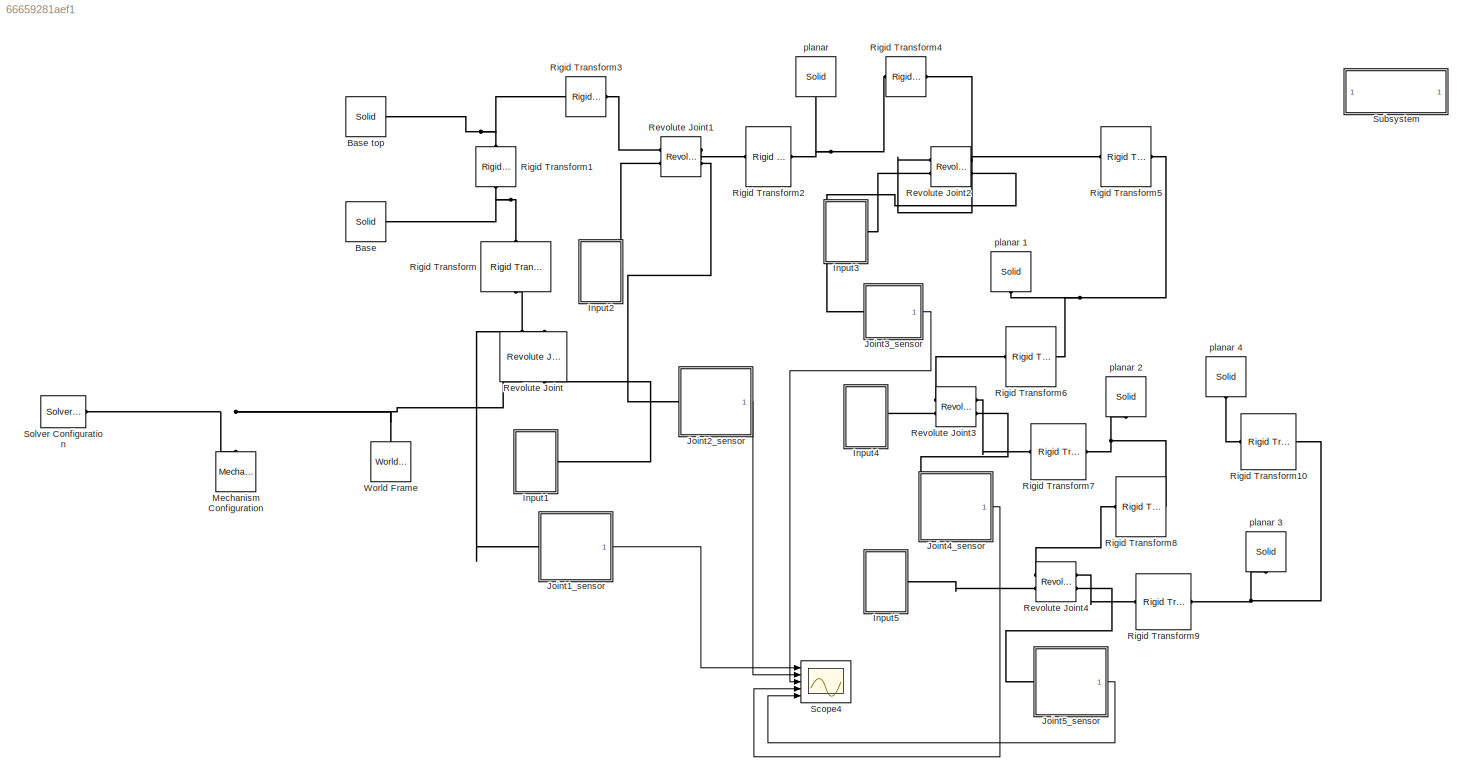
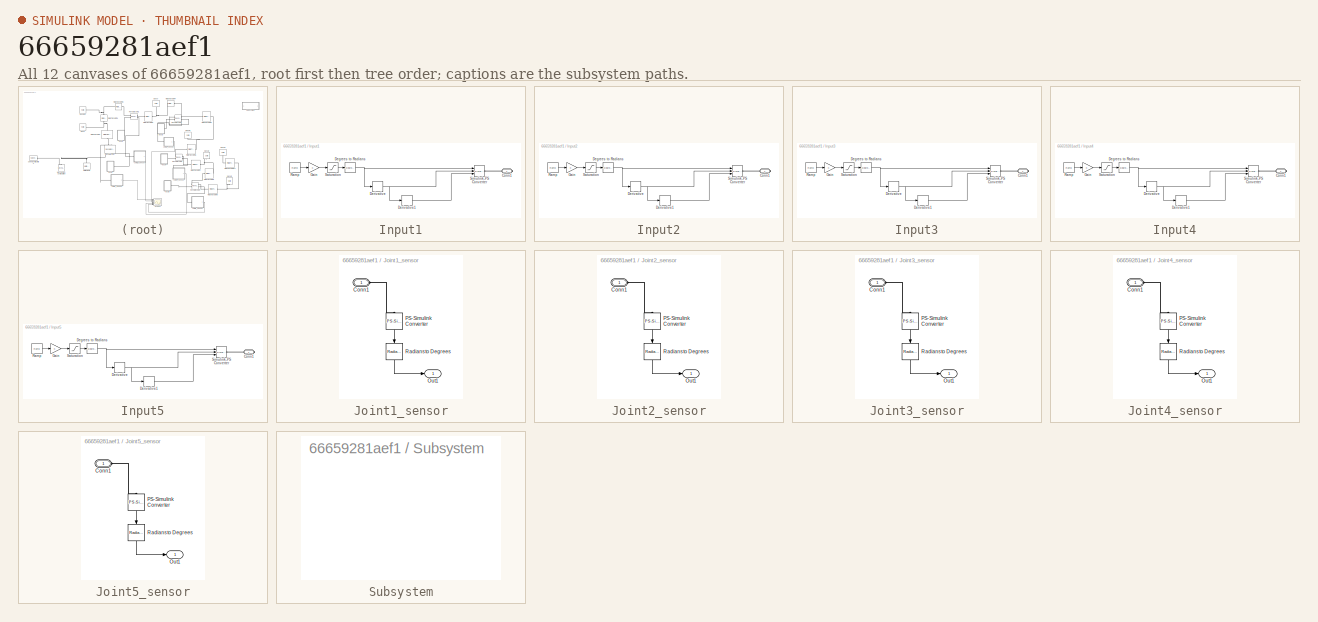
[diagram: thumbnail index - all 12 canvases of the model, root first then tree order]
MODEL slx_66659281aef1
KIND model
CONFIG AbsTol = 1e-3
CONFIG EnableMultiTasking = on
CONFIG FixedStep = auto
CONFIG MaxStep = auto
CONFIG MinStep = auto
CONFIG RelTol = 1e-3
CONFIG SampleTimeConstraint = Unconstrained
CONFIG Solver = VariableStepAuto
CONFIG SolverName = VariableStepAuto
CONFIG StartTime = 0.0
CONFIG StopTime = 50
BLOCK [Reference] Base  REF=sm_lib/Body Elements/Solid
  Ports = [0, 0, 0, 0, 0, 0, 1]
  SourceBlock = sm_lib/Body Elements/Solid
  SourceProductBaseCode = MS
  SourceProductName = Simscape Multibody
  SourceType = Solid
BLOCK [Reference] Base top  REF=sm_lib/Body Elements/Solid
  Ports = [0, 0, 0, 0, 0, 0, 1]
  SourceBlock = sm_lib/Body Elements/Solid
  SourceProductBaseCode = MS
  SourceProductName = Simscape Multibody
  SourceType = Solid
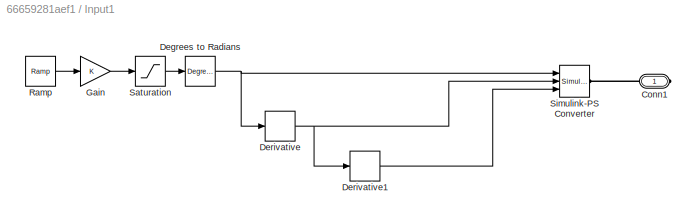
BLOCK [SubSystem] Input1
  Ports = [0, 0, 0, 0, 0, 0, 1]
  RequestExecContextInheritance = off
  Variant = off
BLOCK [PMIOPort] Input1/Conn1
  Port = 1
  Side = Right
BLOCK [Reference] Input1/Degrees to Radians  REF=simulink_extras/Transformations/Degrees to
Radians
  Ports = [1, 1]
  SourceBlock = simulink_extras/Transformations/Degrees to\nRadians
  SourceProductBaseCode = SL
  SourceProductName = Simulink
  SourceType = DegreesToRadians
BLOCK [Derivative] Input1/Derivative
  CoefficientInTFapproximation = 0
BLOCK [Derivative] Input1/Derivative1
  CoefficientInTFapproximation = 0
BLOCK [Gain] Input1/Gain
  OutDataTypeStr = Inherit: Inherit via internal rule
  ParamDataTypeStr = Inherit: Inherit via internal rule
  SaturateOnIntegerOverflow = off
BLOCK [Reference] Input1/Ramp  REF=simulink/Sources/Ramp
  Ports = [0, 1]
  SourceBlock = simulink/Sources/Ramp
  SourceProductBaseCode = SL
  SourceProductName = Simulink
  SourceType = Ramp
BLOCK [Saturate] Input1/Saturation
  InputPortMap = u0
  LowerLimit = -180
  Ports = [1, 1]
  UpperLimit = 0
BLOCK [Reference] Input1/Simulink-PS Converter  REF=nesl_utility/Simulink-PS
Converter
  Ports = [3, 0, 0, 0, 0, 0, 1]
  SourceBlock = nesl_utility/Simulink-PS\nConverter
  SourceProductBaseCode = SS
  SourceProductName = Simscape
  SourceType = Simulink-PS\nConverter
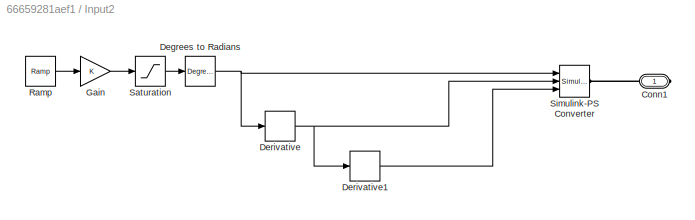
BLOCK [SubSystem] Input2
  Ports = [0, 0, 0, 0, 0, 0, 1]
  RequestExecContextInheritance = off
  Variant = off
BLOCK [PMIOPort] Input2/Conn1
  Port = 1
  Side = Right
BLOCK [Reference] Input2/Degrees to Radians  REF=simulink_extras/Transformations/Degrees to
Radians
  Ports = [1, 1]
  SourceBlock = simulink_extras/Transformations/Degrees to\nRadians
  SourceProductBaseCode = SL
  SourceProductName = Simulink
  SourceType = DegreesToRadians
BLOCK [Derivative] Input2/Derivative
  CoefficientInTFapproximation = 0
BLOCK [Derivative] Input2/Derivative1
  CoefficientInTFapproximation = 0
BLOCK [Gain] Input2/Gain
  OutDataTypeStr = Inherit: Inherit via internal rule
  ParamDataTypeStr = Inherit: Inherit via internal rule
  SaturateOnIntegerOverflow = off
BLOCK [Reference] Input2/Ramp  REF=simulink/Sources/Ramp
  Ports = [0, 1]
  SourceBlock = simulink/Sources/Ramp
  SourceProductBaseCode = SL
  SourceProductName = Simulink
  SourceType = Ramp
BLOCK [Saturate] Input2/Saturation
  InputPortMap = u0
  LowerLimit = -180
  Ports = [1, 1]
  UpperLimit = 90
BLOCK [Reference] Input2/Simulink-PS Converter  REF=nesl_utility/Simulink-PS
Converter
  Ports = [3, 0, 0, 0, 0, 0, 1]
  SourceBlock = nesl_utility/Simulink-PS\nConverter
  SourceProductBaseCode = SS
  SourceProductName = Simscape
  SourceType = Simulink-PS\nConverter
BLOCK [SubSystem] Input3
  Ports = [0, 0, 0, 0, 0, 0, 1]
  RequestExecContextInheritance = off
  Variant = off
BLOCK [PMIOPort] Input3/Conn1
  Port = 1
  Side = Right
BLOCK [Reference] Input3/Degrees to Radians  REF=simulink_extras/Transformations/Degrees to
Radians
  Ports = [1, 1]
  SourceBlock = simulink_extras/Transformations/Degrees to\nRadians
  SourceProductBaseCode = SL
  SourceProductName = Simulink
  SourceType = DegreesToRadians
BLOCK [Derivative] Input3/Derivative
  CoefficientInTFapproximation = 0
BLOCK [Derivative] Input3/Derivative1
  CoefficientInTFapproximation = 0
BLOCK [Gain] Input3/Gain
  OutDataTypeStr = Inherit: Inherit via internal rule
  ParamDataTypeStr = Inherit: Inherit via internal rule
  SaturateOnIntegerOverflow = off
BLOCK [Reference] Input3/Ramp  REF=simulink/Sources/Ramp
  Ports = [0, 1]
  SourceBlock = simulink/Sources/Ramp
  SourceProductBaseCode = SL
  SourceProductName = Simulink
  SourceType = Ramp
BLOCK [Saturate] Input3/Saturation
  InputPortMap = u0
  LowerLimit = -180
  Ports = [1, 1]
  UpperLimit = 0
BLOCK [Reference] Input3/Simulink-PS Converter  REF=nesl_utility/Simulink-PS
Converter
  Ports = [3, 0, 0, 0, 0, 0, 1]
  SourceBlock = nesl_utility/Simulink-PS\nConverter
  SourceProductBaseCode = SS
  SourceProductName = Simscape
  SourceType = Simulink-PS\nConverter
BLOCK [SubSystem] Input4
  Ports = [0, 0, 0, 0, 0, 0, 1]
  RequestExecContextInheritance = off
  Variant = off
BLOCK [PMIOPort] Input4/Conn1
  Port = 1
  Side = Right
BLOCK [Reference] Input4/Degrees to Radians  REF=simulink_extras/Transformations/Degrees to
Radians
  Ports = [1, 1]
  SourceBlock = simulink_extras/Transformations/Degrees to\nRadians
  SourceProductBaseCode = SL
  SourceProductName = Simulink
  SourceType = DegreesToRadians
BLOCK [Derivative] Input4/Derivative
  CoefficientInTFapproximation = 0
BLOCK [Derivative] Input4/Derivative1
  CoefficientInTFapproximation = 0
BLOCK [Gain] Input4/Gain
  OutDataTypeStr = Inherit: Inherit via internal rule
  ParamDataTypeStr = Inherit: Inherit via internal rule
  SaturateOnIntegerOverflow = off
BLOCK [Reference] Input4/Ramp  REF=simulink/Sources/Ramp
  Ports = [0, 1]
  SourceBlock = simulink/Sources/Ramp
  SourceProductBaseCode = SL
  SourceProductName = Simulink
  SourceType = Ramp
BLOCK [Saturate] Input4/Saturation
  InputPortMap = u0
  LowerLimit = -180
  Ports = [1, 1]
  UpperLimit = 0
BLOCK [Reference] Input4/Simulink-PS Converter  REF=nesl_utility/Simulink-PS
Converter
  Ports = [3, 0, 0, 0, 0, 0, 1]
  SourceBlock = nesl_utility/Simulink-PS\nConverter
  SourceProductBaseCode = SS
  SourceProductName = Simscape
  SourceType = Simulink-PS\nConverter
BLOCK [SubSystem] Input5
  Ports = [0, 0, 0, 0, 0, 0, 1]
  RequestExecContextInheritance = off
  Variant = off
BLOCK [PMIOPort] Input5/Conn1
  Port = 1
  Side = Right
BLOCK [Reference] Input5/Degrees to Radians  REF=simulink_extras/Transformations/Degrees to
Radians
  Ports = [1, 1]
  SourceBlock = simulink_extras/Transformations/Degrees to\nRadians
  SourceProductBaseCode = SL
  SourceProductName = Simulink
  SourceType = DegreesToRadians
BLOCK [Derivative] Input5/Derivative
  CoefficientInTFapproximation = 0
BLOCK [Derivative] Input5/Derivative1
  CoefficientInTFapproximation = 0
BLOCK [Gain] Input5/Gain
  OutDataTypeStr = Inherit: Inherit via internal rule
  ParamDataTypeStr = Inherit: Inherit via internal rule
  SaturateOnIntegerOverflow = off
BLOCK [Reference] Input5/Ramp  REF=simulink/Sources/Ramp
  Ports = [0, 1]
  SourceBlock = simulink/Sources/Ramp
  SourceProductBaseCode = SL
  SourceProductName = Simulink
  SourceType = Ramp
BLOCK [Saturate] Input5/Saturation
  InputPortMap = u0
  LowerLimit = -180
  Ports = [1, 1]
  UpperLimit = 0
BLOCK [Reference] Input5/Simulink-PS Converter  REF=nesl_utility/Simulink-PS
Converter
  Ports = [3, 0, 0, 0, 0, 0, 1]
  SourceBlock = nesl_utility/Simulink-PS\nConverter
  SourceProductBaseCode = SS
  SourceProductName = Simscape
  SourceType = Simulink-PS\nConverter
BLOCK [SubSystem] Joint1_sensor
  Ports = [0, 1, 0, 0, 0, 1]
  RequestExecContextInheritance = off
  Variant = off
BLOCK [PMIOPort] Joint1_sensor/Conn1
  Port = 1
  Side = Left
BLOCK [Outport] Joint1_sensor/Out1
  IconDisplay = Port number
BLOCK [Reference] Joint1_sensor/PS-Simulink Converter  REF=nesl_utility/PS-Simulink
Converter
  Ports = [0, 1, 0, 0, 0, 1]
  SourceBlock = nesl_utility/PS-Simulink\nConverter
  SourceProductBaseCode = SS
  SourceProductName = Simscape
  SourceType = PS-Simulink\nConverter
BLOCK [Reference] Joint1_sensor/Radians to Degrees  REF=simulink_extras/Transformations/Radians
to Degrees
  Ports = [1, 1]
  SourceBlock = simulink_extras/Transformations/Radians\nto Degrees
  SourceProductBaseCode = SL
  SourceProductName = Simulink
  SourceType = RadiansToDegrees
BLOCK [SubSystem] Joint2_sensor
  Ports = [0, 1, 0, 0, 0, 1]
  RequestExecContextInheritance = off
  Variant = off
BLOCK [PMIOPort] Joint2_sensor/Conn1
  Port = 1
  Side = Left
BLOCK [Outport] Joint2_sensor/Out1
  IconDisplay = Port number
BLOCK [Reference] Joint2_sensor/PS-Simulink Converter  REF=nesl_utility/PS-Simulink
Converter
  Ports = [0, 1, 0, 0, 0, 1]
  SourceBlock = nesl_utility/PS-Simulink\nConverter
  SourceProductBaseCode = SS
  SourceProductName = Simscape
  SourceType = PS-Simulink\nConverter
BLOCK [Reference] Joint2_sensor/Radians to Degrees  REF=simulink_extras/Transformations/Radians
to Degrees
  Ports = [1, 1]
  SourceBlock = simulink_extras/Transformations/Radians\nto Degrees
  SourceProductBaseCode = SL
  SourceProductName = Simulink
  SourceType = RadiansToDegrees
BLOCK [SubSystem] Joint3_sensor
  Ports = [0, 1, 0, 0, 0, 1]
  RequestExecContextInheritance = off
  Variant = off
BLOCK [PMIOPort] Joint3_sensor/Conn1
  Port = 1
  Side = Left
BLOCK [Outport] Joint3_sensor/Out1
  IconDisplay = Port number
BLOCK [Reference] Joint3_sensor/PS-Simulink Converter  REF=nesl_utility/PS-Simulink
Converter
  Ports = [0, 1, 0, 0, 0, 1]
  SourceBlock = nesl_utility/PS-Simulink\nConverter
  SourceProductBaseCode = SS
  SourceProductName = Simscape
  SourceType = PS-Simulink\nConverter
BLOCK [Reference] Joint3_sensor/Radians to Degrees  REF=simulink_extras/Transformations/Radians
to Degrees
  Ports = [1, 1]
  SourceBlock = simulink_extras/Transformations/Radians\nto Degrees
  SourceProductBaseCode = SL
  SourceProductName = Simulink
  SourceType = RadiansToDegrees
BLOCK [SubSystem] Joint4_sensor
  Ports = [0, 1, 0, 0, 0, 1]
  RequestExecContextInheritance = off
  Variant = off
BLOCK [PMIOPort] Joint4_sensor/Conn1
  Port = 1
  Side = Left
BLOCK [Outport] Joint4_sensor/Out1
  IconDisplay = Port number
BLOCK [Reference] Joint4_sensor/PS-Simulink Converter  REF=nesl_utility/PS-Simulink
Converter
  Ports = [0, 1, 0, 0, 0, 1]
  SourceBlock = nesl_utility/PS-Simulink\nConverter
  SourceProductBaseCode = SS
  SourceProductName = Simscape
  SourceType = PS-Simulink\nConverter
BLOCK [Reference] Joint4_sensor/Radians to Degrees  REF=simulink_extras/Transformations/Radians
to Degrees
  Ports = [1, 1]
  SourceBlock = simulink_extras/Transformations/Radians\nto Degrees
  SourceProductBaseCode = SL
  SourceProductName = Simulink
  SourceType = RadiansToDegrees
BLOCK [SubSystem] Joint5_sensor
  Ports = [0, 1, 0, 0, 0, 1]
  RequestExecContextInheritance = off
  Variant = off
BLOCK [PMIOPort] Joint5_sensor/Conn1
  Port = 1
  Side = Left
BLOCK [Outport] Joint5_sensor/Out1
  IconDisplay = Port number
BLOCK [Reference] Joint5_sensor/PS-Simulink Converter  REF=nesl_utility/PS-Simulink
Converter
  Ports = [0, 1, 0, 0, 0, 1]
  SourceBlock = nesl_utility/PS-Simulink\nConverter
  SourceProductBaseCode = SS
  SourceProductName = Simscape
  SourceType = PS-Simulink\nConverter
BLOCK [Reference] Joint5_sensor/Radians to Degrees  REF=simulink_extras/Transformations/Radians
to Degrees
  Ports = [1, 1]
  SourceBlock = simulink_extras/Transformations/Radians\nto Degrees
  SourceProductBaseCode = SL
  SourceProductName = Simulink
  SourceType = RadiansToDegrees
BLOCK [Reference] Mechanism Configuration  REF=sm_lib/Utilities/Mechanism
Configuration
  Ports = [0, 0, 0, 0, 0, 0, 1]
  SourceBlock = sm_lib/Utilities/Mechanism\nConfiguration
  SourceProductBaseCode = MS
  SourceProductName = Simscape Multibody
  SourceType = Mechanism\nConfiguration
BLOCK [Reference] Revolute Joint  REF=sm_lib/Joints/Revolute Joint
  Ports = [0, 0, 0, 0, 0, 2, 2]
  SourceBlock = sm_lib/Joints/Revolute Joint
  SourceProductBaseCode = MS
  SourceProductName = Simscape Multibody
  SourceType = Revolute Joint
BLOCK [Reference] Revolute Joint1  REF=sm_lib/Joints/Revolute Joint
  Ports = [0, 0, 0, 0, 0, 2, 2]
  SourceBlock = sm_lib/Joints/Revolute Joint
  SourceProductBaseCode = MS
  SourceProductName = Simscape Multibody
  SourceType = Revolute Joint
BLOCK [Reference] Revolute Joint2  REF=sm_lib/Joints/Revolute Joint
  Ports = [0, 0, 0, 0, 0, 2, 2]
  SourceBlock = sm_lib/Joints/Revolute Joint
  SourceProductBaseCode = MS
  SourceProductName = Simscape Multibody
  SourceType = Revolute Joint
BLOCK [Reference] Revolute Joint3  REF=sm_lib/Joints/Revolute Joint
  Ports = [0, 0, 0, 0, 0, 2, 2]
  SourceBlock = sm_lib/Joints/Revolute Joint
  SourceProductBaseCode = MS
  SourceProductName = Simscape Multibody
  SourceType = Revolute Joint
BLOCK [Reference] Revolute Joint4  REF=sm_lib/Joints/Revolute Joint
  Ports = [0, 0, 0, 0, 0, 2, 2]
  SourceBlock = sm_lib/Joints/Revolute Joint
  SourceProductBaseCode = MS
  SourceProductName = Simscape Multibody
  SourceType = Revolute Joint
BLOCK [Reference] Rigid Transform  REF=sm_lib/Frames and
Transforms/Rigid
Transform
  Ports = [0, 0, 0, 0, 0, 1, 1]
  SourceBlock = sm_lib/Frames and\nTransforms/Rigid\nTransform
  SourceProductBaseCode = MS
  SourceProductName = Simscape Multibody
  SourceType = Rigid\nTransform
BLOCK [Reference] Rigid Transform1  REF=sm_lib/Frames and
Transforms/Rigid
Transform
  Ports = [0, 0, 0, 0, 0, 1, 1]
  SourceBlock = sm_lib/Frames and\nTransforms/Rigid\nTransform
  SourceProductBaseCode = MS
  SourceProductName = Simscape Multibody
  SourceType = Rigid\nTransform
BLOCK [Reference] Rigid Transform10  REF=sm_lib/Frames and
Transforms/Rigid
Transform
  Ports = [0, 0, 0, 0, 0, 1, 1]
  SourceBlock = sm_lib/Frames and\nTransforms/Rigid\nTransform
  SourceProductBaseCode = MS
  SourceProductName = Simscape Multibody
  SourceType = Rigid\nTransform
BLOCK [Reference] Rigid Transform2  REF=sm_lib/Frames and
Transforms/Rigid
Transform
  Ports = [0, 0, 0, 0, 0, 1, 1]
  SourceBlock = sm_lib/Frames and\nTransforms/Rigid\nTransform
  SourceProductBaseCode = MS
  SourceProductName = Simscape Multibody
  SourceType = Rigid\nTransform
BLOCK [Reference] Rigid Transform3  REF=sm_lib/Frames and
Transforms/Rigid
Transform
  Ports = [0, 0, 0, 0, 0, 1, 1]
  SourceBlock = sm_lib/Frames and\nTransforms/Rigid\nTransform
  SourceProductBaseCode = MS
  SourceProductName = Simscape Multibody
  SourceType = Rigid\nTransform
BLOCK [Reference] Rigid Transform4  REF=sm_lib/Frames and
Transforms/Rigid
Transform
  Ports = [0, 0, 0, 0, 0, 1, 1]
  SourceBlock = sm_lib/Frames and\nTransforms/Rigid\nTransform
  SourceProductBaseCode = MS
  SourceProductName = Simscape Multibody
  SourceType = Rigid\nTransform
BLOCK [Reference] Rigid Transform5  REF=sm_lib/Frames and
Transforms/Rigid
Transform
  Ports = [0, 0, 0, 0, 0, 1, 1]
  SourceBlock = sm_lib/Frames and\nTransforms/Rigid\nTransform
  SourceProductBaseCode = MS
  SourceProductName = Simscape Multibody
  SourceType = Rigid\nTransform
BLOCK [Reference] Rigid Transform6  REF=sm_lib/Frames and
Transforms/Rigid
Transform
  Ports = [0, 0, 0, 0, 0, 1, 1]
  SourceBlock = sm_lib/Frames and\nTransforms/Rigid\nTransform
  SourceProductBaseCode = MS
  SourceProductName = Simscape Multibody
  SourceType = Rigid\nTransform
BLOCK [Reference] Rigid Transform7  REF=sm_lib/Frames and
Transforms/Rigid
Transform
  Ports = [0, 0, 0, 0, 0, 1, 1]
  SourceBlock = sm_lib/Frames and\nTransforms/Rigid\nTransform
  SourceProductBaseCode = MS
  SourceProductName = Simscape Multibody
  SourceType = Rigid\nTransform
BLOCK [Reference] Rigid Transform8  REF=sm_lib/Frames and
Transforms/Rigid
Transform
  Ports = [0, 0, 0, 0, 0, 1, 1]
  SourceBlock = sm_lib/Frames and\nTransforms/Rigid\nTransform
  SourceProductBaseCode = MS
  SourceProductName = Simscape Multibody
  SourceType = Rigid\nTransform
BLOCK [Reference] Rigid Transform9  REF=sm_lib/Frames and
Transforms/Rigid
Transform
  Ports = [0, 0, 0, 0, 0, 1, 1]
  SourceBlock = sm_lib/Frames and\nTransforms/Rigid\nTransform
  SourceProductBaseCode = MS
  SourceProductName = Simscape Multibody
  SourceType = Rigid\nTransform
BLOCK [Scope] Scope4
  NumInputPorts = 5
  Ports = [5]
  ScopeSpecificationString = Simulink.scopes.TimeScopeBlockCfg('CurrentConfiguration', extmgr.ConfigurationSet(extmgr.Configuration('Core','General UI',true),extmgr.Configuration('Core','Source UI',true),extmgr.Configuration('Sources','WiredSimulink',true),extmgr.Configuration('Visuals','Time Domain',true,'SerializedDisplays',{struct('MinYLimReal','-63.25','MaxYLimReal','69.25','YLabelReal','','MinYLimMag','0.00000','MaxYLimM...<+1412ch>
BLOCK [Reference] Solver Configuration  REF=nesl_utility/Solver
Configuration
  Ports = [0, 0, 0, 0, 0, 0, 1]
  SourceBlock = nesl_utility/Solver\nConfiguration
  SourceProductBaseCode = SS
  SourceProductName = Simscape
  SourceType = Solver\nConfiguration
BLOCK [SubSystem] Subsystem
  OpenFcn = open_system('simscape')
  Ports = []
  RequestExecContextInheritance = off
  ShowPortLabels = none
  Variant = off
BLOCK [Reference] World Frame  REF=sm_lib/Frames and
Transforms/World Frame
  Ports = [0, 0, 0, 0, 0, 0, 1]
  SourceBlock = sm_lib/Frames and\nTransforms/World Frame
  SourceProductBaseCode = MS
  SourceProductName = Simscape Multibody
  SourceType = World Frame
BLOCK [Reference] planar   REF=sm_lib/Body Elements/Solid
  Ports = [0, 0, 0, 0, 0, 0, 1]
  SourceBlock = sm_lib/Body Elements/Solid
  SourceProductBaseCode = MS
  SourceProductName = Simscape Multibody
  SourceType = Solid
BLOCK [Reference] planar 1  REF=sm_lib/Body Elements/Solid
  Ports = [0, 0, 0, 0, 0, 0, 1]
  SourceBlock = sm_lib/Body Elements/Solid
  SourceProductBaseCode = MS
  SourceProductName = Simscape Multibody
  SourceType = Solid
BLOCK [Reference] planar 2  REF=sm_lib/Body Elements/Solid
  Ports = [0, 0, 0, 0, 0, 0, 1]
  SourceBlock = sm_lib/Body Elements/Solid
  SourceProductBaseCode = MS
  SourceProductName = Simscape Multibody
  SourceType = Solid
BLOCK [Reference] planar 3  REF=sm_lib/Body Elements/Solid
  Ports = [0, 0, 0, 0, 0, 0, 1]
  SourceBlock = sm_lib/Body Elements/Solid
  SourceProductBaseCode = MS
  SourceProductName = Simscape Multibody
  SourceType = Solid
BLOCK [Reference] planar 4  REF=sm_lib/Body Elements/Solid
  Ports = [0, 0, 0, 0, 0, 0, 1]
  SourceBlock = sm_lib/Body Elements/Solid
  SourceProductBaseCode = MS
  SourceProductName = Simscape Multibody
  SourceType = Solid
NET Input1/Degrees to Radians:1 -> Input1/Derivative:1, Input1/Simulink-PS Converter:1
LINE Input1/Derivative1:1 -> Input1/Simulink-PS Converter:3
NET Input1/Derivative:1 -> Input1/Derivative1:1, Input1/Simulink-PS Converter:2
LINE Input1/Gain:1 -> Input1/Saturation:1
LINE Input1/Ramp:1 -> Input1/Gain:1
LINE Input1/Saturation:1 -> Input1/Degrees to Radians:1
NET Input2/Degrees to Radians:1 -> Input2/Derivative:1, Input2/Simulink-PS Converter:1
LINE Input2/Derivative1:1 -> Input2/Simulink-PS Converter:3
NET Input2/Derivative:1 -> Input2/Derivative1:1, Input2/Simulink-PS Converter:2
LINE Input2/Gain:1 -> Input2/Saturation:1
LINE Input2/Ramp:1 -> Input2/Gain:1
LINE Input2/Saturation:1 -> Input2/Degrees to Radians:1
NET Input3/Degrees to Radians:1 -> Input3/Derivative:1, Input3/Simulink-PS Converter:1
LINE Input3/Derivative1:1 -> Input3/Simulink-PS Converter:3
NET Input3/Derivative:1 -> Input3/Derivative1:1, Input3/Simulink-PS Converter:2
LINE Input3/Gain:1 -> Input3/Saturation:1
LINE Input3/Ramp:1 -> Input3/Gain:1
LINE Input3/Saturation:1 -> Input3/Degrees to Radians:1
NET Input4/Degrees to Radians:1 -> Input4/Derivative:1, Input4/Simulink-PS Converter:1
LINE Input4/Derivative1:1 -> Input4/Simulink-PS Converter:3
NET Input4/Derivative:1 -> Input4/Derivative1:1, Input4/Simulink-PS Converter:2
LINE Input4/Gain:1 -> Input4/Saturation:1
LINE Input4/Ramp:1 -> Input4/Gain:1
LINE Input4/Saturation:1 -> Input4/Degrees to Radians:1
NET Input5/Degrees to Radians:1 -> Input5/Derivative:1, Input5/Simulink-PS Converter:1
LINE Input5/Derivative1:1 -> Input5/Simulink-PS Converter:3
NET Input5/Derivative:1 -> Input5/Derivative1:1, Input5/Simulink-PS Converter:2
LINE Input5/Gain:1 -> Input5/Saturation:1
LINE Input5/Ramp:1 -> Input5/Gain:1
LINE Input5/Saturation:1 -> Input5/Degrees to Radians:1
LINE Joint1_sensor/PS-Simulink Converter:1 -> Joint1_sensor/Radians to Degrees:1
LINE Joint1_sensor/Radians to Degrees:1 -> Joint1_sensor/Out1:1
LINE Joint1_sensor:1 -> Scope4:1
LINE Joint2_sensor/PS-Simulink Converter:1 -> Joint2_sensor/Radians to Degrees:1
LINE Joint2_sensor/Radians to Degrees:1 -> Joint2_sensor/Out1:1
LINE Joint2_sensor:1 -> Scope4:2
LINE Joint3_sensor/PS-Simulink Converter:1 -> Joint3_sensor/Radians to Degrees:1
LINE Joint3_sensor/Radians to Degrees:1 -> Joint3_sensor/Out1:1
LINE Joint3_sensor:1 -> Scope4:3
LINE Joint4_sensor/PS-Simulink Converter:1 -> Joint4_sensor/Radians to Degrees:1
LINE Joint4_sensor/Radians to Degrees:1 -> Joint4_sensor/Out1:1
LINE Joint4_sensor:1 -> Scope4:4
LINE Joint5_sensor/PS-Simulink Converter:1 -> Joint5_sensor/Radians to Degrees:1
LINE Joint5_sensor/Radians to Degrees:1 -> Joint5_sensor/Out1:1
LINE Joint5_sensor:1 -> Scope4:5
PNET net1: Base top:RConn1 -- Rigid Transform1:RConn1 -- Rigid Transform3:LConn1
PNET net2: Base:RConn1 -- Rigid Transform1:LConn1 -- Rigid Transform:LConn1
PLINE Input1/Conn1:RConn1 -- Input1/Simulink-PS Converter:RConn1
PLINE Input1:RConn1 -- Revolute Joint:LConn2
PLINE Input2/Conn1:RConn1 -- Input2/Simulink-PS Converter:RConn1
PLINE Input2:RConn1 -- Revolute Joint1:LConn2
PLINE Input3/Conn1:RConn1 -- Input3/Simulink-PS Converter:RConn1
PLINE Input3:RConn1 -- Revolute Joint2:LConn2
PLINE Input4/Conn1:RConn1 -- Input4/Simulink-PS Converter:RConn1
PLINE Input4:RConn1 -- Revolute Joint3:LConn2
PLINE Input5/Conn1:RConn1 -- Input5/Simulink-PS Converter:RConn1
PLINE Input5:RConn1 -- Revolute Joint4:LConn2
PLINE Joint1_sensor/Conn1:RConn1 -- Joint1_sensor/PS-Simulink Converter:LConn1
PLINE Joint1_sensor:LConn1 -- Revolute Joint:RConn2
PLINE Joint2_sensor/Conn1:RConn1 -- Joint2_sensor/PS-Simulink Converter:LConn1
PLINE Joint2_sensor:LConn1 -- Revolute Joint1:RConn2
PLINE Joint3_sensor/Conn1:RConn1 -- Joint3_sensor/PS-Simulink Converter:LConn1
PLINE Joint3_sensor:LConn1 -- Revolute Joint2:RConn2
PLINE Joint4_sensor/Conn1:RConn1 -- Joint4_sensor/PS-Simulink Converter:LConn1
PLINE Joint4_sensor:LConn1 -- Revolute Joint3:RConn2
PLINE Joint5_sensor/Conn1:RConn1 -- Joint5_sensor/PS-Simulink Converter:LConn1
PLINE Joint5_sensor:LConn1 -- Revolute Joint4:RConn2
PNET net3: Mechanism Configuration:RConn1 -- Revolute Joint:LConn1 -- Solver Configuration:RConn1 -- World Frame:RConn1
PLINE Revolute Joint1:LConn1 -- Rigid Transform3:RConn1
PLINE Revolute Joint1:RConn1 -- Rigid Transform2:RConn1
PLINE Revolute Joint2:LConn1 -- Rigid Transform4:RConn1
PLINE Revolute Joint2:RConn1 -- Rigid Transform5:RConn1
PLINE Revolute Joint3:LConn1 -- Rigid Transform6:RConn1
PLINE Revolute Joint3:RConn1 -- Rigid Transform7:RConn1
PLINE Revolute Joint4:LConn1 -- Rigid Transform8:RConn1
PLINE Revolute Joint4:RConn1 -- Rigid Transform9:RConn1
PLINE Revolute Joint:RConn1 -- Rigid Transform:RConn1
PNET net4: Rigid Transform10:LConn1 -- Rigid Transform9:LConn1 -- planar 3:RConn1
PLINE Rigid Transform10:RConn1 -- planar 4:RConn1
PNET net5: Rigid Transform2:LConn1 -- Rigid Transform4:LConn1 -- planar :RConn1
PNET net6: Rigid Transform5:LConn1 -- Rigid Transform6:LConn1 -- planar 1:RConn1
PNET net7: Rigid Transform7:LConn1 -- Rigid Transform8:LConn1 -- planar 2:RConn1
note: NET lines group one-source signal fan-out (src -> all destinations, sorted); 1:1 wires keep LINE; PNET lines group multi-terminal physical nets as a canonical sorted terminal list (undirected conserving connections); 2-terminal nets keep the pairwise PLINE form
